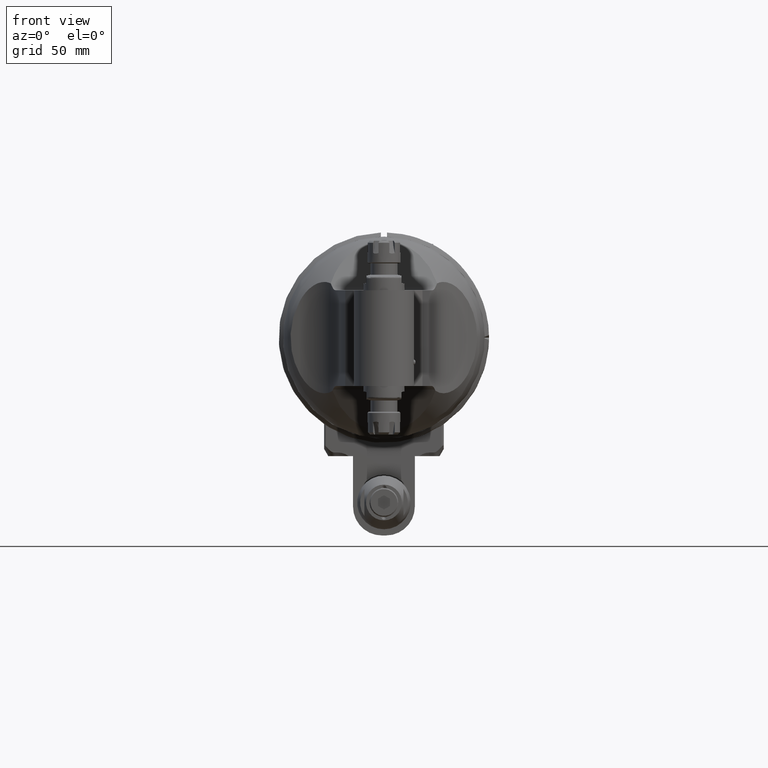
[diagram: clean part render]
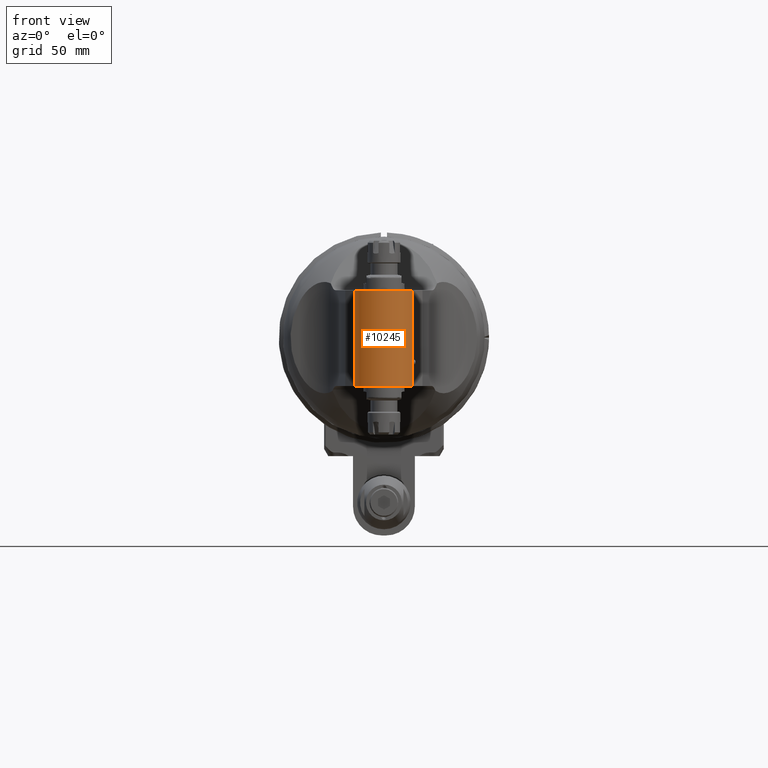
[diagram: same view with one face highlighted and labeled with its STEP entity id]
A machine part, front view. The second image highlights one B-rep face of the part: STEP entity #10245.
In plain terms, the highlighted cylindrical surface (edge-blend (fillet) strip) has radius 14.5 mm, axis along (0, -0, 1).
Its self-contained STEP definition (entity closure, byte-faithful):
#518=CYLINDRICAL_SURFACE('',#10967,14.5);
#707=CIRCLE('',#10937,14.5);
#709=CIRCLE('',#10941,14.5);
#1317=FACE_OUTER_BOUND('',#1959,.T.);
#1959=EDGE_LOOP('',(#6931,#6932,#6933,#6934));
#2736=LINE('',#15752,#3489);
#2737=LINE('',#15754,#3490);
#3489=VECTOR('',#12342,46.5);
#3490=VECTOR('',#12345,46.5);
#4214=VERTEX_POINT('',#15549);
#4215=VERTEX_POINT('',#15551);
#4223=VERTEX_POINT('',#15571);
#4224=VERTEX_POINT('',#15573);
#5254=EDGE_CURVE('',#4215,#4214,#707,.T.);
#5265=EDGE_CURVE('',#4223,#4224,#709,.T.);
#5311=EDGE_CURVE('',#4214,#4224,#2736,.T.);
#5312=EDGE_CURVE('',#4223,#4215,#2737,.T.);
#6931=ORIENTED_EDGE('',*,*,#5265,.F.);
#6932=ORIENTED_EDGE('',*,*,#5312,.T.);
#6933=ORIENTED_EDGE('',*,*,#5254,.T.);
#6934=ORIENTED_EDGE('',*,*,#5311,.T.);
#10245=ADVANCED_FACE('',(#1317),#518,.T.);
#10937=AXIS2_PLACEMENT_3D('',#15552,#12249,#12250);
#10941=AXIS2_PLACEMENT_3D('',#15574,#12266,#12267);
#10967=AXIS2_PLACEMENT_3D('',#15753,#12343,#12344);
#12249=DIRECTION('center_axis',(0.,0.,-1.));
#12250=DIRECTION('ref_axis',(0.965925826289076,-0.258819045102493,0.));
#12266=DIRECTION('center_axis',(0.,0.,-1.));
#12267=DIRECTION('ref_axis',(0.965925826289076,-0.258819045102493,0.));
#12342=DIRECTION('',(0.,0.,-1.));
#12343=DIRECTION('center_axis',(0.,0.,-1.));
#12344=DIRECTION('ref_axis',(1.22464679914735E-16,-1.,0.));
#12345=DIRECTION('',(0.,0.,1.));
#15549=CARTESIAN_POINT('',(-14.00592448119,-3.752876153987,23.5));
#15551=CARTESIAN_POINT('',(14.00592448119,-3.752876153987,23.5));
#15552=CARTESIAN_POINT('Origin',(0.,0.,23.5));
#15571=CARTESIAN_POINT('',(14.00592448119,-3.752876153987,-23.));
#15573=CARTESIAN_POINT('',(-14.00592448119,-3.752876153987,-23.));
#15574=CARTESIAN_POINT('Origin',(0.,0.,-23.));
#15752=CARTESIAN_POINT('',(-14.00592448119,-3.752876153987,23.5));
#15753=CARTESIAN_POINT('Origin',(0.,0.,66.95199937934));
#15754=CARTESIAN_POINT('',(14.00592448119,-3.752876153987,-23.));